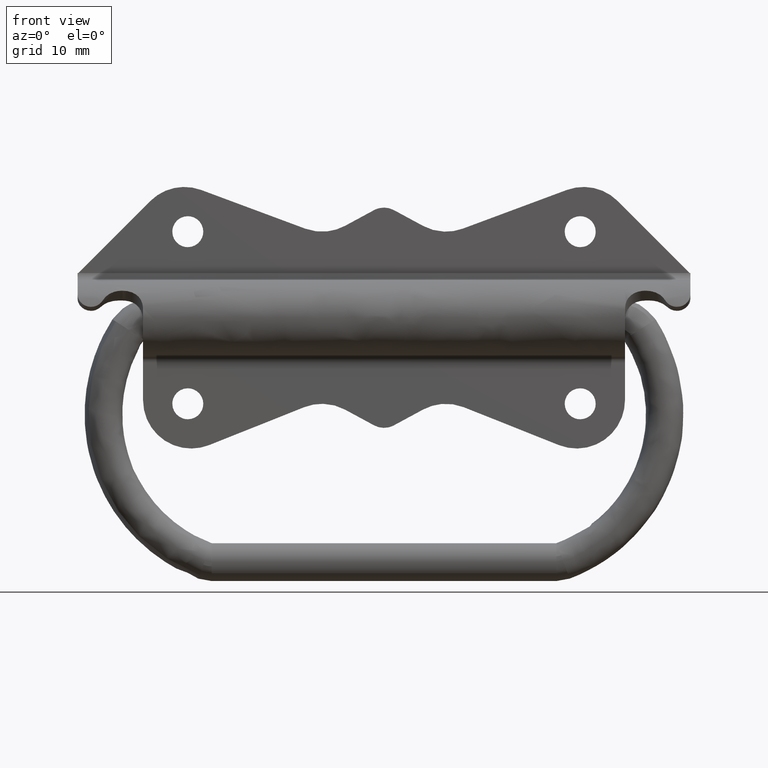
[diagram: clean part render]
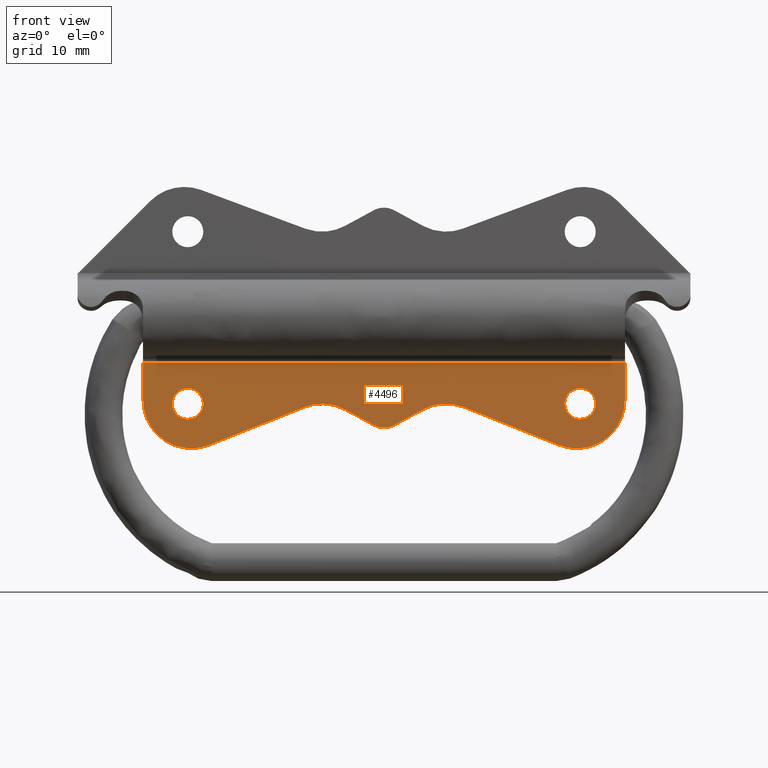
[diagram: same view with one face highlighted and labeled with its STEP entity id]
A machine part, front view. The second image highlights one B-rep face of the part: STEP entity #4496.
In plain terms, the highlighted face is a freeform B-spline surface patch.
Its self-contained STEP definition (entity closure, byte-faithful):
#2038=CARTESIAN_POINT('',(28.499500000000001,2.0,-10.250000000000000));
#2039=VERTEX_POINT('',#2038);
#2040=CARTESIAN_POINT('',(26.887035696800659,2.0,-10.930778391132570));
#2041=VERTEX_POINT('',#2040);
#2042=CARTESIAN_POINT('',(28.499500000000001,2.0,-10.250000000000000));
#2043=CARTESIAN_POINT('',(28.218569100993399,2.000000000000001,-10.249747650686110));
#2044=CARTESIAN_POINT('',(27.619531654703412,1.999999999999998,-10.363735457415430));
#2045=CARTESIAN_POINT('',(27.108811645181621,2.000000000000001,-10.702302972770690));
#2046=CARTESIAN_POINT('',(26.887035696800659,2.0,-10.930778391132570));
#2047=B_SPLINE_CURVE_WITH_KNOTS('',3,(#2042,#2043,#2044,#2045,#2046),.UNSPECIFIED.,.F.,.U.,(4,1,4),(0.000000042793378,0.842713720006788,1.797770490313598),.UNSPECIFIED.);
#2048=EDGE_CURVE('',#2039,#2041,#2047,.T.);
#2105=CARTESIAN_POINT('',(26.840625699199109,1.999999999987740,-14.020078438442679));
#2106=VERTEX_POINT('',#2105);
#2112=CARTESIAN_POINT('',(28.499500000000001,2.0,-14.750000000000000));
#2113=VERTEX_POINT('',#2112);
#2114=CARTESIAN_POINT('',(26.840625699199109,1.999999999987740,-14.020078438442679));
#2115=CARTESIAN_POINT('',(27.037356192074089,1.999999999989194,-14.235176183446420));
#2116=CARTESIAN_POINT('',(27.547832620297068,1.999999999992967,-14.610405979897831));
#2117=CARTESIAN_POINT('',(28.169095428495950,1.999999999997558,-14.750527585485329));
#2118=CARTESIAN_POINT('',(28.499500000000001,2.0,-14.750000000000000));
#2119=B_SPLINE_CURVE_WITH_KNOTS('',3,(#2114,#2115,#2116,#2117,#2118),.UNSPECIFIED.,.F.,.U.,(4,1,4),(0.000000051364264,0.874403335719323,1.865372861857639),.UNSPECIFIED.);
#2120=EDGE_CURVE('',#2106,#2113,#2119,.T.);
#2122=CARTESIAN_POINT('',(30.749499999998971,2.0,-12.499997854166470));
#2123=VERTEX_POINT('',#2122);
#2124=CARTESIAN_POINT('',(28.499500000000001,2.0,-14.750000000000000));
#2125=CARTESIAN_POINT('',(28.738812796902710,1.999999999999998,-14.750123688976601));
#2126=CARTESIAN_POINT('',(29.143708149605828,2.000000000000002,-14.684770402882000));
#2127=CARTESIAN_POINT('',(29.632003585219000,1.999999999999999,-14.461051854522280));
#2128=CARTESIAN_POINT('',(30.021345663178248,2.0,-14.179662252076120));
#2129=CARTESIAN_POINT('',(30.332691210833200,1.999999999999998,-13.836109441505270));
#2130=CARTESIAN_POINT('',(30.651894773759800,2.000000000000003,-13.272849692469210));
#2131=CARTESIAN_POINT('',(30.749908187967691,2.000000000000009,-12.813013428066810));
#2132=CARTESIAN_POINT('',(30.749499999998971,2.0,-12.499997854166470));
#2133=B_SPLINE_CURVE_WITH_KNOTS('',3,(#2124,#2125,#2126,#2127,#2128,#2129,#2130,#2131,#2132),.UNSPECIFIED.,.F.,.U.,(4,1,1,1,1,1,4),(0.000000155766479,0.717913608047188,1.214959039227545,1.601549855183199,2.153760779973816,2.595558531605726,3.534381634218063),.UNSPECIFIED.);
#2134=EDGE_CURVE('',#2113,#2123,#2133,.T.);
#2136=CARTESIAN_POINT('',(30.749499999998971,2.0,-12.499997854166470));
#2137=CARTESIAN_POINT('',(30.749624002331021,2.000000000000001,-12.260685555840469));
#2138=CARTESIAN_POINT('',(30.684271786862439,1.999999999999999,-11.855788879404560));
#2139=CARTESIAN_POINT('',(30.460554148160220,2.000000000000002,-11.367493596410810));
#2140=CARTESIAN_POINT('',(30.200788277050599,1.999999999999997,-11.008143579161709));
#2141=CARTESIAN_POINT('',(29.839155934768939,1.999999999999995,-10.663687256312951));
#2142=CARTESIAN_POINT('',(29.272497602891381,2.000000000000015,-10.342688398472340));
#2143=CARTESIAN_POINT('',(28.775644941795239,1.999999999999983,-10.249754795770810));
#2144=CARTESIAN_POINT('',(28.499500000000001,2.0,-10.250000000000000));
#2145=B_SPLINE_CURVE_WITH_KNOTS('',3,(#2136,#2137,#2138,#2139,#2140,#2141,#2142,#2143,#2144),.UNSPECIFIED.,.F.,.U.,(4,1,1,1,1,1,4),(0.000000158703077,0.717913119255745,1.214958210620904,1.601548762523572,2.043287317765234,2.706012229850209,3.534379215303205),.UNSPECIFIED.);
#2146=EDGE_CURVE('',#2123,#2039,#2145,.T.);
#2165=CARTESIAN_POINT('',(26.249500000001021,2.0,-12.500002145833520));
#2166=VERTEX_POINT('',#2165);
#2167=CARTESIAN_POINT('',(26.887035696800659,2.0,-10.930778391132570));
#2168=CARTESIAN_POINT('',(26.697604508248379,2.0,-11.125099921277201));
#2169=CARTESIAN_POINT('',(26.370213057743609,2.000000000000004,-11.613938294198560));
#2170=CARTESIAN_POINT('',(26.249103071525020,1.999999999999997,-12.192423284349010));
#2171=CARTESIAN_POINT('',(26.249500000001021,2.0,-12.500002145833520));
#2172=B_SPLINE_CURVE_WITH_KNOTS('',3,(#2167,#2168,#2169,#2170,#2171),.UNSPECIFIED.,.F.,.U.,(4,1,4),(0.000000051619368,0.814049717150546,1.736611738029660),.UNSPECIFIED.);
#2173=EDGE_CURVE('',#2041,#2166,#2172,.T.);
#2175=CARTESIAN_POINT('',(26.249500000001021,2.0,-12.500002145833520));
#2176=CARTESIAN_POINT('',(26.249444361566042,1.999999999998458,-12.691245287146250));
#2177=CARTESIAN_POINT('',(26.296324917149999,1.999999999995515,-13.056303595184019));
#2178=CARTESIAN_POINT('',(26.499311524331400,1.999999999991299,-13.578298057904760));
#2179=CARTESIAN_POINT('',(26.711390991418639,1.999999999988880,-13.879112596051090));
#2180=CARTESIAN_POINT('',(26.840625699199109,1.999999999987740,-14.020078438442679));
#2181=B_SPLINE_CURVE_WITH_KNOTS('',3,(#2175,#2176,#2177,#2178,#2179,#2180),.UNSPECIFIED.,.F.,.U.,(4,1,1,4),(0.000000042381597,0.573722890229576,1.095283808662106,1.669006656559723),.UNSPECIFIED.);
#2182=EDGE_CURVE('',#2166,#2106,#2181,.T.);
#2233=CARTESIAN_POINT('',(-28.500000000000000,2.0,-10.250000000000000));
#2234=VERTEX_POINT('',#2233);
#2235=CARTESIAN_POINT('',(-30.112464303199339,2.0,-10.930778391132570));
#2236=VERTEX_POINT('',#2235);
#2237=CARTESIAN_POINT('',(-28.500000000000000,2.0,-10.250000000000000));
#2238=CARTESIAN_POINT('',(-28.780930550638679,1.999999999999998,-10.249748281556370));
#2239=CARTESIAN_POINT('',(-29.379968446972750,2.000000000000007,-10.363735093873119));
#2240=CARTESIAN_POINT('',(-29.890688258379690,1.999999999999998,-10.702302899320250));
#2241=CARTESIAN_POINT('',(-30.112464303199339,2.0,-10.930778391132570));
#2242=B_SPLINE_CURVE_WITH_KNOTS('',3,(#2237,#2238,#2239,#2240,#2241),.UNSPECIFIED.,.F.,.U.,(4,1,4),(0.000000042792575,0.842713720006391,1.797770490313597),.UNSPECIFIED.);
#2243=EDGE_CURVE('',#2234,#2236,#2242,.T.);
#2301=CARTESIAN_POINT('',(-30.158874300800900,1.999999999987740,-14.020078438442679));
#2302=VERTEX_POINT('',#2301);
#2308=CARTESIAN_POINT('',(-28.500000000000000,2.0,-14.750000000000000));
#2309=VERTEX_POINT('',#2308);
#2310=CARTESIAN_POINT('',(-30.158874300800900,1.999999999987740,-14.020078438442679));
#2311=CARTESIAN_POINT('',(-29.962162616056890,1.999999999989190,-14.235224371076979));
#2312=CARTESIAN_POINT('',(-29.595219664682752,1.999999999991911,-14.504781654179860));
#2313=CARTESIAN_POINT('',(-29.005164957737470,1.999999999996261,-14.711284534311901));
#2314=CARTESIAN_POINT('',(-28.674879234883068,1.999999999998713,-14.750037189971170));
#2315=CARTESIAN_POINT('',(-28.500000000000000,2.0,-14.750000000000000));
#2316=B_SPLINE_CURVE_WITH_KNOTS('',3,(#2310,#2311,#2312,#2313,#2314,#2315),.UNSPECIFIED.,.F.,.U.,(4,1,1,4),(0.000000051364987,0.874403335719627,1.340735715909202,1.865372861857641),.UNSPECIFIED.);
#2317=EDGE_CURVE('',#2302,#2309,#2316,.T.);
#2319=CARTESIAN_POINT('',(-26.250000000001030,2.0,-12.499997854166470));
#2320=VERTEX_POINT('',#2319);
#2321=CARTESIAN_POINT('',(-28.500000000000000,2.0,-14.750000000000000));
#2322=CARTESIAN_POINT('',(-28.223835184416050,1.999999999999999,-14.750255581971210));
#2323=CARTESIAN_POINT('',(-27.819066363014400,2.000000000000005,-14.674462370622560));
#2324=CARTESIAN_POINT('',(-27.271125771140220,1.999999999999996,-14.407022099327760));
#2325=CARTESIAN_POINT('',(-26.865025105860600,2.000000000000008,-14.082049052784370));
#2326=CARTESIAN_POINT('',(-26.544668245308301,1.999999999999991,-13.650006514292400));
#2327=CARTESIAN_POINT('',(-26.312292845832360,2.000000000000001,-13.125786643308841));
#2328=CARTESIAN_POINT('',(-26.249856195832230,2.000000000000006,-12.739319378786870));
#2329=CARTESIAN_POINT('',(-26.250000000001030,2.0,-12.499997854166470));
#2330=B_SPLINE_CURVE_WITH_KNOTS('',3,(#2321,#2322,#2323,#2324,#2325,#2326,#2327,#2328,#2329),.UNSPECIFIED.,.F.,.U.,(4,1,1,1,1,1,4),(0.000000155767724,0.828370738500755,1.214959039228126,1.822395233326841,2.374649720452811,2.816460583743048,3.534381634218060),.UNSPECIFIED.);
#2331=EDGE_CURVE('',#2309,#2320,#2330,.T.);
#2333=CARTESIAN_POINT('',(-26.250000000001030,2.0,-12.499997854166470));
#2334=CARTESIAN_POINT('',(-26.249932652292451,2.000000000000001,-12.297506316553550));
#2335=CARTESIAN_POINT('',(-26.297566139623171,1.999999999999998,-11.947804845769840));
#2336=CARTESIAN_POINT('',(-26.517102362301351,2.000000000000003,-11.378236085373191));
#2337=CARTESIAN_POINT('',(-26.895428739595321,1.999999999999990,-10.868064000285530));
#2338=CARTESIAN_POINT('',(-27.412798864847730,2.000000000000015,-10.503875178644689));
#2339=CARTESIAN_POINT('',(-27.947810607420859,2.0,-10.297557055638210));
#2340=CARTESIAN_POINT('',(-28.297508861695380,1.999999999999991,-10.249924414759599));
#2341=CARTESIAN_POINT('',(-28.500000000000000,2.0,-10.250000000000000));
#2342=B_SPLINE_CURVE_WITH_KNOTS('',3,(#2333,#2334,#2335,#2336,#2337,#2338,#2339,#2340,#2341),.UNSPECIFIED.,.F.,.U.,(4,1,1,1,1,1,4),(0.000000158708611,0.607471928700234,1.049277274466396,1.822393990692870,2.485110328858266,2.926920889924989,3.534379215303185),.UNSPECIFIED.);
#2343=EDGE_CURVE('',#2320,#2234,#2342,.T.);
#2362=CARTESIAN_POINT('',(-30.749999999998980,2.0,-12.500002145833520));
#2363=VERTEX_POINT('',#2362);
#2364=CARTESIAN_POINT('',(-30.112464303199339,2.0,-10.930778391132570));
#2365=CARTESIAN_POINT('',(-30.251284922635801,2.000000000000001,-11.073343372953550));
#2366=CARTESIAN_POINT('',(-30.458031486161950,1.999999999999998,-11.351675468238110));
#2367=CARTESIAN_POINT('',(-30.689862506315510,2.000000000000003,-11.885036662279250));
#2368=CARTESIAN_POINT('',(-30.750135218203869,1.999999999999998,-12.264816736560180));
#2369=CARTESIAN_POINT('',(-30.749999999998980,2.0,-12.500002145833520));
#2370=B_SPLINE_CURVE_WITH_KNOTS('',3,(#2364,#2365,#2366,#2367,#2368,#2369),.UNSPECIFIED.,.F.,.U.,(4,1,1,4),(0.000000051619462,0.596962390755055,1.031098570551091,1.736611738029663),.UNSPECIFIED.);
#2371=EDGE_CURVE('',#2236,#2363,#2370,.T.);
#2373=CARTESIAN_POINT('',(-30.749999999998980,2.0,-12.500002145833520));
#2374=CARTESIAN_POINT('',(-30.750187911581950,1.999999999997898,-12.760804929237670));
#2375=CARTESIAN_POINT('',(-30.652152877816562,1.999999999993410,-13.316989171667251));
#2376=CARTESIAN_POINT('',(-30.358797625291391,1.999999999989497,-13.802353460509000));
#2377=CARTESIAN_POINT('',(-30.158874300800900,1.999999999987740,-14.020078438442679));
#2378=B_SPLINE_CURVE_WITH_KNOTS('',3,(#2373,#2374,#2375,#2376,#2377),.UNSPECIFIED.,.F.,.U.,(4,1,4),(0.000000042382114,0.782358396396838,1.669006656559726),.UNSPECIFIED.);
#2379=EDGE_CURVE('',#2363,#2302,#2378,.T.);
#3205=CARTESIAN_POINT('',(-25.409274324718851,2.0,-18.502109289157300));
#3206=VERTEX_POINT('',#3205);
#3212=CARTESIAN_POINT('',(-35.0,2.0,-11.999176068260841));
#3213=VERTEX_POINT('',#3212);
#3214=CARTESIAN_POINT('',(-35.0,2.0,-11.999176068260841));
#3215=CARTESIAN_POINT('',(-35.000327872092079,1.999999999999990,-12.674586941232290));
#3216=CARTESIAN_POINT('',(-34.854750643174590,2.000000000000009,-13.669650362732080));
#3217=CARTESIAN_POINT('',(-34.317961193752197,1.999999999999996,-15.104625039709161));
#3218=CARTESIAN_POINT('',(-33.673300758287837,2.000000000000001,-16.178150394688370));
#3219=CARTESIAN_POINT('',(-32.760426731324223,2.000000000000003,-17.180143743783329));
#3220=CARTESIAN_POINT('',(-31.686271838931049,1.999999999999998,-18.008362188411791));
#3221=CARTESIAN_POINT('',(-30.494947858225419,2.0,-18.585477722350980));
#3222=CARTESIAN_POINT('',(-29.358243925183459,2.0,-18.888607384537739));
#3223=CARTESIAN_POINT('',(-28.368720650040970,2.000000000000004,-19.011522361850510));
#3224=CARTESIAN_POINT('',(-27.049808477110250,1.999999999999983,-18.993850446428539));
#3225=CARTESIAN_POINT('',(-26.036607611666408,2.000000000000028,-18.752309867132229));
#3226=CARTESIAN_POINT('',(-25.409274324718851,2.0,-18.502109289157300));
#3227=B_SPLINE_CURVE_WITH_KNOTS('',3,(#3214,#3215,#3216,#3217,#3218,#3219,#3220,#3221,#3222,#3223,#3224,#3225,#3226),.UNSPECIFIED.,.F.,.U.,(4,1,1,1,1,1,1,1,1,1,4),(0.000000076574125,2.026104293721213,2.985839923220079,4.585417692620270,5.758443334133613,7.038026294419080,8.637578323433305,9.703967376430887,10.557079426003190,11.623470158594561,13.649550529836629),.UNSPECIFIED.);
#3228=EDGE_CURVE('',#3213,#3206,#3227,.T.);
#3250=CARTESIAN_POINT('',(-11.590549203779499,2.0,-12.996820405760941));
#3251=VERTEX_POINT('',#3250);
#3257=CARTESIAN_POINT('',(-11.590549203779499,2.0,-12.996820405760941));
#3258=CARTESIAN_POINT('',(-25.409274324718851,2.0,-18.502109289157300));
#3259=QUASI_UNIFORM_CURVE('',1,(#3257,#3258),.UNSPECIFIED.,.F.,.U.);
#3260=EDGE_CURVE('',#3251,#3206,#3259,.T.);
#3292=CARTESIAN_POINT('',(-5.668320255987521,2.0,-13.343367840723459));
#3293=VERTEX_POINT('',#3292);
#3299=CARTESIAN_POINT('',(-5.668320255987521,2.0,-13.343367840723459));
#3300=CARTESIAN_POINT('',(-6.201414391818095,2.0,-13.054701958222109));
#3301=CARTESIAN_POINT('',(-7.343155043787305,2.000000000000001,-12.617199345607469));
#3302=CARTESIAN_POINT('',(-8.974855240023981,1.999999999999996,-12.443006249999829));
#3303=CARTESIAN_POINT('',(-10.407212641653491,2.000000000000004,-12.605001784193821));
#3304=CARTESIAN_POINT('',(-11.205234379689520,2.0,-12.843279318407429));
#3305=CARTESIAN_POINT('',(-11.590549203779499,2.0,-12.996820405760941));
#3306=B_SPLINE_CURVE_WITH_KNOTS('',3,(#3299,#3300,#3301,#3302,#3303,#3304,#3305),.UNSPECIFIED.,.F.,.U.,(4,1,1,1,4),(0.000000034709561,1.818671070308197,3.637325184732050,4.881687316303316,6.126032526699675),.UNSPECIFIED.);
#3307=EDGE_CURVE('',#3293,#3251,#3306,.T.);
#3325=CARTESIAN_POINT('',(-1.428287116790358,2.0,-15.637844627909850));
#3326=VERTEX_POINT('',#3325);
#3332=CARTESIAN_POINT('',(-1.428287116790358,2.0,-15.637844627909850));
#3333=CARTESIAN_POINT('',(-5.668320255987521,2.0,-13.343367840723459));
#3334=QUASI_UNIFORM_CURVE('',1,(#3332,#3333),.UNSPECIFIED.,.F.,.U.);
#3335=EDGE_CURVE('',#3326,#3293,#3334,.T.);
#3367=CARTESIAN_POINT('',(1.427287116790350,2.0,-15.637844627909850));
#3368=VERTEX_POINT('',#3367);
#3374=CARTESIAN_POINT('',(-1.428287116790358,2.0,-15.637844627909850));
#3375=CARTESIAN_POINT('',(-1.223817015526516,1.999999999999999,-15.748538329995810));
#3376=CARTESIAN_POINT('',(-0.774480013139936,2.0,-15.927841336129800));
#3377=CARTESIAN_POINT('',(-0.124825491672390,2.000000000000004,-16.019063931413299));
#3378=CARTESIAN_POINT('',(0.635660705256723,1.999999999999988,-15.965952132448921));
#3379=CARTESIAN_POINT('',(1.127440906494672,2.000000000000013,-15.800356923872950));
#3380=CARTESIAN_POINT('',(1.427287116790350,2.0,-15.637844627909850));
#3381=B_SPLINE_CURVE_WITH_KNOTS('',3,(#3374,#3375,#3376,#3377,#3378,#3379,#3380),.UNSPECIFIED.,.F.,.U.,(4,1,1,1,4),(0.000000076282622,0.697534294145456,1.441601235768477,1.953096241370383,2.976150247926259),.UNSPECIFIED.);
#3382=EDGE_CURVE('',#3326,#3368,#3381,.T.);
#3400=CARTESIAN_POINT('',(5.667744301681920,2.0,-13.343138370110720));
#3401=VERTEX_POINT('',#3400);
#3407=CARTESIAN_POINT('',(5.667744301681920,2.0,-13.343138370110720));
#3408=CARTESIAN_POINT('',(1.427287116790350,2.0,-15.637844627909850));
#3409=QUASI_UNIFORM_CURVE('',1,(#3407,#3408),.UNSPECIFIED.,.F.,.U.);
#3410=EDGE_CURVE('',#3401,#3368,#3409,.T.);
#3442=CARTESIAN_POINT('',(11.590054155568820,2.0,-12.996623168185620));
#3443=VERTEX_POINT('',#3442);
#3449=CARTESIAN_POINT('',(11.590054155568820,2.0,-12.996623168185620));
#3450=CARTESIAN_POINT('',(11.026925516654799,2.000000000000002,-12.772093169650750));
#3451=CARTESIAN_POINT('',(9.841932848605985,1.999999999999997,-12.470728126091300));
#3452=CARTESIAN_POINT('',(8.265388620075159,2.000000000000007,-12.487347271755270));
#3453=CARTESIAN_POINT('',(6.858897130269633,1.999999999999982,-12.795705405562250));
#3454=CARTESIAN_POINT('',(6.088635848815517,2.000000000000012,-13.115296539123770));
#3455=CARTESIAN_POINT('',(5.667744301681920,2.0,-13.343138370110720));
#3456=B_SPLINE_CURVE_WITH_KNOTS('',3,(#3449,#3450,#3451,#3452,#3453,#3454,#3455),.UNSPECIFIED.,.F.,.U.,(4,1,1,1,4),(0.000000034711659,1.818696926143169,3.637376895704712,4.690311136489506,6.126119619290704),.UNSPECIFIED.);
#3457=EDGE_CURVE('',#3443,#3401,#3456,.T.);
#3475=CARTESIAN_POINT('',(25.408693418623901,2.0,-18.502077059491452));
#3476=VERTEX_POINT('',#3475);
#3482=CARTESIAN_POINT('',(25.408693418623901,2.0,-18.502077059491452));
#3483=CARTESIAN_POINT('',(11.590054155568820,2.0,-12.996623168185620));
#3484=QUASI_UNIFORM_CURVE('',1,(#3482,#3483),.UNSPECIFIED.,.F.,.U.);
#3485=EDGE_CURVE('',#3476,#3443,#3484,.T.);
#3523=CARTESIAN_POINT('',(34.999500000000012,2.0,-11.999176071632400));
#3524=VERTEX_POINT('',#3523);
#3530=CARTESIAN_POINT('',(25.408693418623901,2.0,-18.502077059491452));
#3531=CARTESIAN_POINT('',(25.870955463150889,1.999999999999998,-18.686346083843340));
#3532=CARTESIAN_POINT('',(26.662849660706780,2.0,-18.907474473900692));
#3533=CARTESIAN_POINT('',(27.797593179455461,2.000000000000002,-19.018240007655368));
#3534=CARTESIAN_POINT('',(28.830040602113570,2.000000000000004,-18.977136019445179));
#3535=CARTESIAN_POINT('',(30.055581404173729,1.999999999999994,-18.738809033418679));
#3536=CARTESIAN_POINT('',(31.312942771947679,2.000000000000017,-18.221714286437429));
#3537=CARTESIAN_POINT('',(32.612921115344271,1.999999999999975,-17.340324054486540));
#3538=CARTESIAN_POINT('',(33.569908446428727,2.000000000000044,-16.321428896369142));
#3539=CARTESIAN_POINT('',(34.369118894396330,1.999999999999973,-15.013247379324710));
#3540=CARTESIAN_POINT('',(34.873033817697142,2.000000000000017,-13.634246307038770));
#3541=CARTESIAN_POINT('',(34.999596130034398,1.999999999999996,-12.532357680462709));
#3542=CARTESIAN_POINT('',(34.999500000000012,2.0,-11.999176071632400));
#3543=B_SPLINE_CURVE_WITH_KNOTS('',3,(#3530,#3531,#3532,#3533,#3534,#3535,#3536,#3537,#3538,#3539,#3540,#3541,#3542),.UNSPECIFIED.,.F.,.U.,(4,1,1,1,1,1,1,1,1,1,4),(0.000000076573414,1.492894605110125,2.452652222630659,3.412410373178336,4.585446950900282,6.185033759716333,7.464599210623443,9.277487204354408,10.343866634379280,12.050091134290721,13.649637622918370),.UNSPECIFIED.);
#3544=EDGE_CURVE('',#3476,#3524,#3543,.T.);
#3612=CARTESIAN_POINT('',(-35.0,2.0,-6.500000000000000));
#3613=VERTEX_POINT('',#3612);
#3614=CARTESIAN_POINT('',(-35.0,2.0,-11.999176068260841));
#3615=CARTESIAN_POINT('',(-35.0,2.0,-6.500000000000000));
#3616=QUASI_UNIFORM_CURVE('',1,(#3614,#3615),.UNSPECIFIED.,.F.,.U.);
#3617=EDGE_CURVE('',#3213,#3613,#3616,.T.);
#3684=CARTESIAN_POINT('',(34.999500000000012,2.0,-6.500000000000000));
#3685=VERTEX_POINT('',#3684);
#3697=CARTESIAN_POINT('',(34.999500000000012,2.0,-6.500000000000000));
#3698=CARTESIAN_POINT('',(34.999500000000012,2.0,-11.999176071632400));
#3699=QUASI_UNIFORM_CURVE('',1,(#3697,#3698),.UNSPECIFIED.,.F.,.U.);
#3700=EDGE_CURVE('',#3685,#3524,#3699,.T.);
#4457=CARTESIAN_POINT('',(-38.496474889327381,2.0,-19.623081285483671));
#4458=CARTESIAN_POINT('',(-38.496474889327381,2.0,-5.875686234608088));
#4459=CARTESIAN_POINT('',(38.495976766860302,2.0,-19.623081285483671));
#4460=CARTESIAN_POINT('',(38.495976766860302,2.0,-5.875686234608088));
#4461=B_SPLINE_SURFACE_WITH_KNOTS('',1,1,((#4457,#4459),(#4458,#4460)),.UNSPECIFIED.,.F.,.F.,.U.,(2,2),(2,2),(0.0,13.747395050875580),(0.0,76.992451656187683),.UNSPECIFIED.);
#4462=ORIENTED_EDGE('',*,*,#3700,.F.);
#4463=CARTESIAN_POINT('',(34.999500000000012,2.0,-6.500000000000000));
#4464=CARTESIAN_POINT('',(-35.0,2.0,-6.500000000000000));
#4465=QUASI_UNIFORM_CURVE('',1,(#4463,#4464),.UNSPECIFIED.,.F.,.U.);
#4466=EDGE_CURVE('',#3685,#3613,#4465,.T.);
#4467=ORIENTED_EDGE('',*,*,#4466,.T.);
#4468=ORIENTED_EDGE('',*,*,#3617,.F.);
#4469=ORIENTED_EDGE('',*,*,#3228,.T.);
#4470=ORIENTED_EDGE('',*,*,#3260,.F.);
#4471=ORIENTED_EDGE('',*,*,#3307,.F.);
#4472=ORIENTED_EDGE('',*,*,#3335,.F.);
#4473=ORIENTED_EDGE('',*,*,#3382,.T.);
#4474=ORIENTED_EDGE('',*,*,#3410,.F.);
#4475=ORIENTED_EDGE('',*,*,#3457,.F.);
#4476=ORIENTED_EDGE('',*,*,#3485,.F.);
#4477=ORIENTED_EDGE('',*,*,#3544,.T.);
#4478=EDGE_LOOP('',(#4462,#4467,#4468,#4469,#4470,#4471,#4472,#4473,#4474,#4475,#4476,#4477));
#4479=FACE_OUTER_BOUND('',#4478,.T.);
#4480=ORIENTED_EDGE('',*,*,#2331,.F.);
#4481=ORIENTED_EDGE('',*,*,#2317,.F.);
#4482=ORIENTED_EDGE('',*,*,#2379,.F.);
#4483=ORIENTED_EDGE('',*,*,#2371,.F.);
#4484=ORIENTED_EDGE('',*,*,#2243,.F.);
#4485=ORIENTED_EDGE('',*,*,#2343,.F.);
#4486=EDGE_LOOP('',(#4480,#4481,#4482,#4483,#4484,#4485));
#4487=FACE_BOUND('',#4486,.T.);
#4488=ORIENTED_EDGE('',*,*,#2134,.F.);
#4489=ORIENTED_EDGE('',*,*,#2120,.F.);
#4490=ORIENTED_EDGE('',*,*,#2182,.F.);
#4491=ORIENTED_EDGE('',*,*,#2173,.F.);
#4492=ORIENTED_EDGE('',*,*,#2048,.F.);
#4493=ORIENTED_EDGE('',*,*,#2146,.F.);
#4494=EDGE_LOOP('',(#4488,#4489,#4490,#4491,#4492,#4493));
#4495=FACE_BOUND('',#4494,.T.);
#4496=ADVANCED_FACE('',(#4479,#4487,#4495),#4461,.F.);